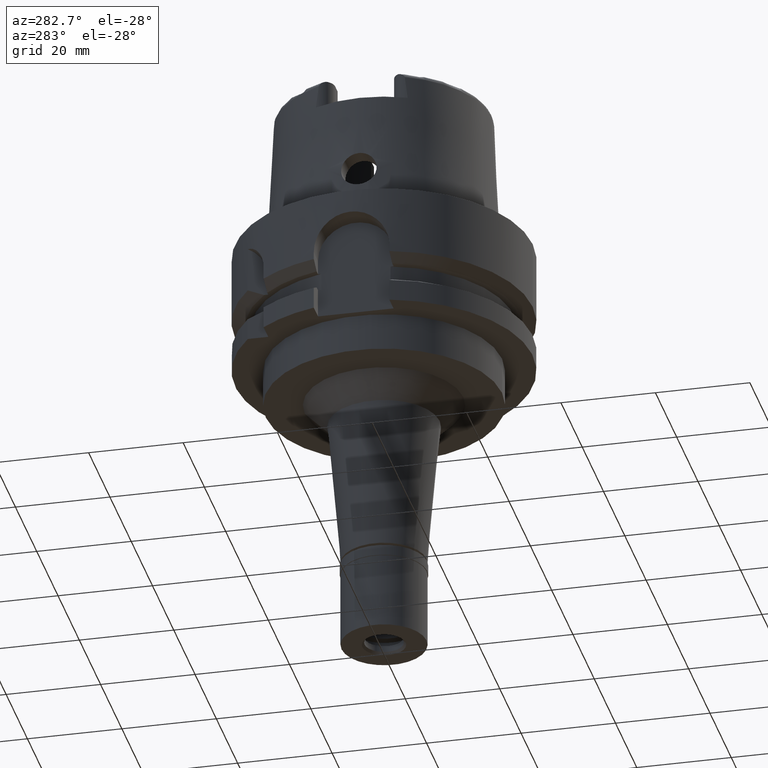
[diagram: clean part render]
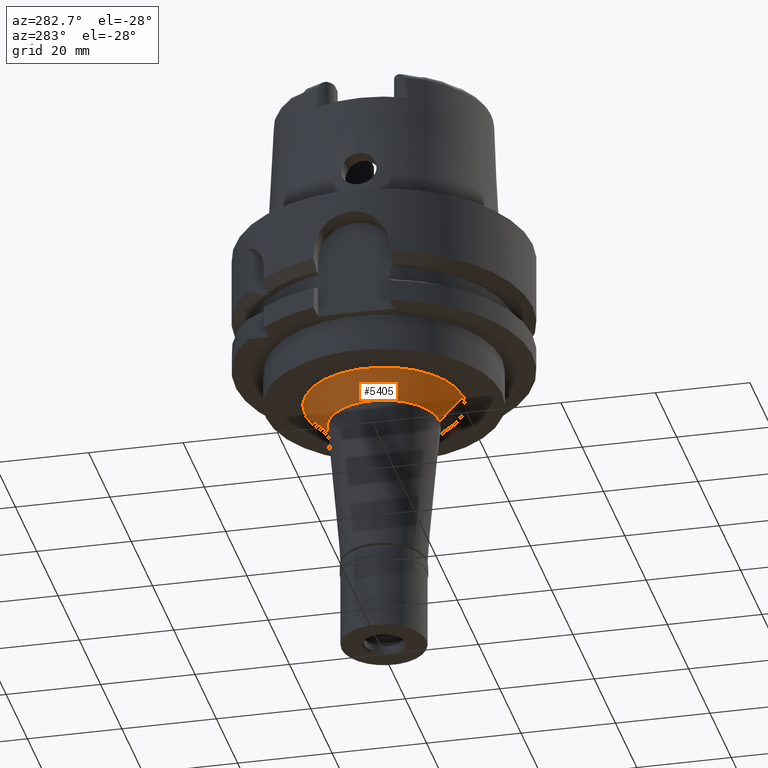
[diagram: same view with one face highlighted and labeled with its STEP entity id]
A machine part, auxiliary view. The second image highlights one B-rep face of the part: STEP entity #5405.
In plain terms, the highlighted conical surface has half-angle 45 deg.
Its self-contained STEP definition (entity closure, byte-faithful):
#70 = CIRCLE ( 'NONE', #5102, 16.79088836648000083 ) ;
#100 = CARTESIAN_POINT ( 'NONE',  ( 0.0000000000000000000, -16.79088836648000083, -34.00000000000000000 ) ) ;
#452 = LINE ( 'NONE', #3419, #4806 ) ;
#540 = DIRECTION ( 'NONE',  ( 0.0000000000000000000, -0.7071067811865969777, -0.7071067811864980568 ) ) ;
#711 = EDGE_LOOP ( 'NONE', ( #1078, #4980, #5267, #5122 ) ) ;
#805 = DIRECTION ( 'NONE',  ( 0.0000000000000000000, -1.000000000000000000, 0.0000000000000000000 ) ) ;
#821 = EDGE_CURVE ( 'NONE', #4135, #1156, #452, .T. ) ;
#860 = CONICAL_SURFACE ( 'NONE', #5262, 14.29088836648000083, 0.7853981633972997312 ) ;
#1078 = ORIENTED_EDGE ( 'NONE', *, *, #4637, .F. ) ;
#1156 = VERTEX_POINT ( 'NONE', #1608 ) ;
#1175 = DIRECTION ( 'NONE',  ( 0.0000000000000000000, 1.000000000000000000, 0.0000000000000000000 ) ) ;
#1271 = CARTESIAN_POINT ( 'NONE',  ( 0.0000000000000000000, 0.0000000000000000000, -39.00000000000000000 ) ) ;
#1608 = CARTESIAN_POINT ( 'NONE',  ( 0.0000000000000000000, 11.79088836648000083, -39.00000000000000000 ) ) ;
#2059 = CARTESIAN_POINT ( 'NONE',  ( 0.0000000000000000000, -16.79088836648000083, -34.00000000000000000 ) ) ;
#2433 = DIRECTION ( 'NONE',  ( 0.0000000000000000000, 0.0000000000000000000, -1.000000000000000000 ) ) ;
#2720 = VECTOR ( 'NONE', #3749, 1000.000000000000000 ) ;
#2755 = VERTEX_POINT ( 'NONE', #3806 ) ;
#3345 = LINE ( 'NONE', #2059, #2720 ) ;
#3419 = CARTESIAN_POINT ( 'NONE',  ( 0.0000000000000000000, 16.79088836648000083, -34.00000000000000000 ) ) ;
#3721 = CARTESIAN_POINT ( 'NONE',  ( 0.0000000000000000000, 16.79088836648000083, -34.00000000000000000 ) ) ;
#3727 = FACE_OUTER_BOUND ( 'NONE', #711, .T. ) ;
#3740 = EDGE_CURVE ( 'NONE', #5249, #4135, #70, .T. ) ;
#3749 = DIRECTION ( 'NONE',  ( 0.0000000000000000000, 0.7071067811865969777, -0.7071067811864980568 ) ) ;
#3806 = CARTESIAN_POINT ( 'NONE',  ( 0.0000000000000000000, -11.79088836648000083, -39.00000000000000000 ) ) ;
#4135 = VERTEX_POINT ( 'NONE', #3721 ) ;
#4150 = DIRECTION ( 'NONE',  ( 0.0000000000000000000, -1.000000000000000000, 0.0000000000000000000 ) ) ;
#4599 = EDGE_CURVE ( 'NONE', #5249, #2755, #3345, .T. ) ;
#4637 = EDGE_CURVE ( 'NONE', #2755, #1156, #5256, .T. ) ;
#4647 = DIRECTION ( 'NONE',  ( 0.0000000000000000000, 0.0000000000000000000, -1.000000000000000000 ) ) ;
#4796 = AXIS2_PLACEMENT_3D ( 'NONE', #1271, #4647, #805 ) ;
#4806 = VECTOR ( 'NONE', #540, 1000.000000000000000 ) ;
#4980 = ORIENTED_EDGE ( 'NONE', *, *, #4599, .F. ) ;
#5019 = DIRECTION ( 'NONE',  ( 0.0000000000000000000, 0.0000000000000000000, 1.000000000000000000 ) ) ;
#5102 = AXIS2_PLACEMENT_3D ( 'NONE', #5367, #2433, #4150 ) ;
#5122 = ORIENTED_EDGE ( 'NONE', *, *, #821, .T. ) ;
#5249 = VERTEX_POINT ( 'NONE', #100 ) ;
#5256 = CIRCLE ( 'NONE', #4796, 11.79088836648000083 ) ;
#5262 = AXIS2_PLACEMENT_3D ( 'NONE', #5453, #5019, #1175 ) ;
#5267 = ORIENTED_EDGE ( 'NONE', *, *, #3740, .T. ) ;
#5367 = CARTESIAN_POINT ( 'NONE',  ( 0.0000000000000000000, 0.0000000000000000000, -34.00000000000000000 ) ) ;
#5405 = ADVANCED_FACE ( 'NONE', ( #3727 ), #860, .T. ) ;
#5453 = CARTESIAN_POINT ( 'NONE',  ( 0.0000000000000000000, 0.0000000000000000000, -36.50000000000000000 ) ) ;